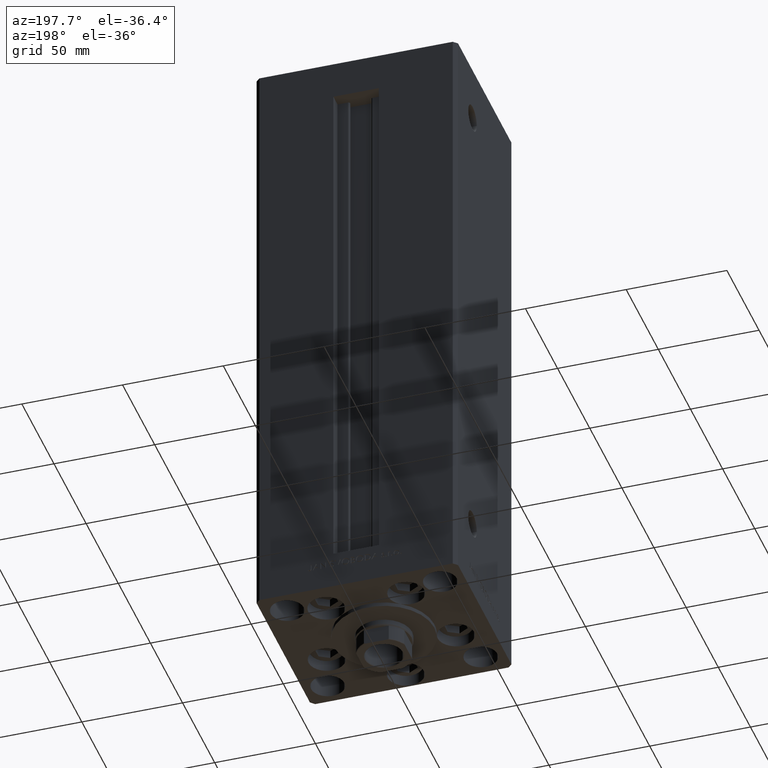
[diagram: clean part render]
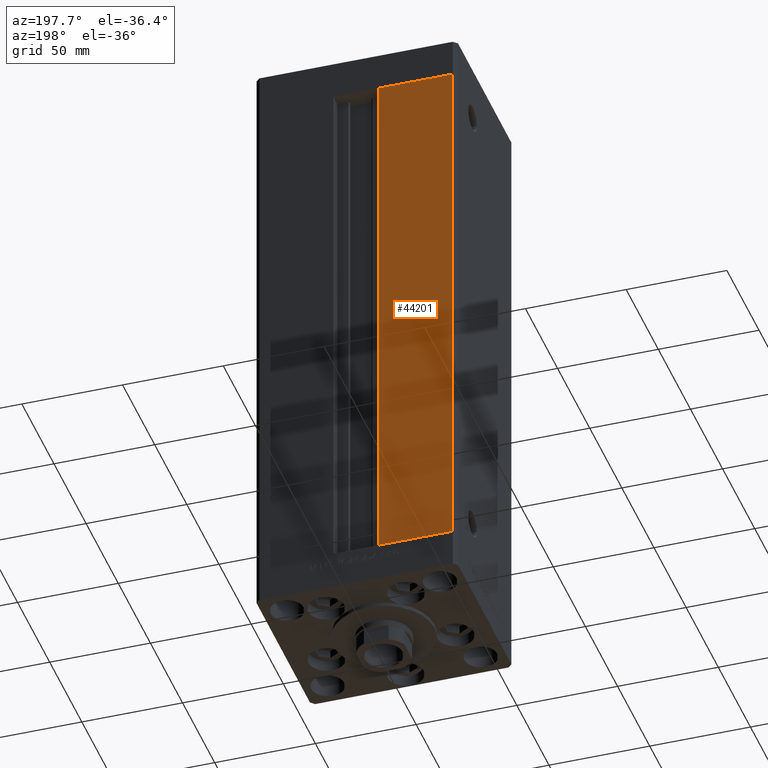
[diagram: same view with one face highlighted and labeled with its STEP entity id]
A machine part, auxiliary view. The second image highlights one B-rep face of the part: STEP entity #44201.
In plain terms, the highlighted planar face has unit normal (0, -1, 0).
Its self-contained STEP definition (entity closure, byte-faithful):
#866 = VECTOR ( 'NONE', #42245, 1000.000000000000000 ) ;
#1098 = CARTESIAN_POINT ( 'NONE',  ( -48.00000000000000711, 43.50000000000000000, 268.5000000000000000 ) ) ;
#1668 = VECTOR ( 'NONE', #35017, 1000.000000000000000 ) ;
#3226 = FACE_OUTER_BOUND ( 'NONE', #14101, .T. ) ;
#5992 = VERTEX_POINT ( 'NONE', #32886 ) ;
#6529 = VERTEX_POINT ( 'NONE', #26563 ) ;
#7055 = EDGE_CURVE ( 'NONE', #7555, #6529, #20066, .T. ) ;
#7555 = VERTEX_POINT ( 'NONE', #16772 ) ;
#7844 = EDGE_CURVE ( 'NONE', #31466, #5992, #12928, .T. ) ;
#9345 = ORIENTED_EDGE ( 'NONE', *, *, #11903, .F. ) ;
#10081 = VECTOR ( 'NONE', #35021, 1000.000000000000000 ) ;
#11335 = CARTESIAN_POINT ( 'NONE',  ( -11.24999999999999822, 43.50000000000000000, 0.000000000000000000 ) ) ;
#11903 = EDGE_CURVE ( 'NONE', #7555, #5992, #37696, .T. ) ;
#12529 = VECTOR ( 'NONE', #47636, 1000.000000000000000 ) ;
#12928 = LINE ( 'NONE', #43581, #12529 ) ;
#14101 = EDGE_LOOP ( 'NONE', ( #15762, #9345, #34101, #27576 ) ) ;
#14860 = DIRECTION ( 'NONE',  ( 0.000000000000000000, -1.000000000000000000, 0.000000000000000000 ) ) ;
#15762 = ORIENTED_EDGE ( 'NONE', *, *, #7844, .T. ) ;
#16772 = CARTESIAN_POINT ( 'NONE',  ( -11.24999999999999822, 43.50000000000000000, 0.000000000000000000 ) ) ;
#18655 = PLANE ( 'NONE',  #48634 ) ;
#20066 = LINE ( 'NONE', #46449, #10081 ) ;
#26563 = CARTESIAN_POINT ( 'NONE',  ( -48.00000000000000711, 43.50000000000000000, 0.000000000000000000 ) ) ;
#27576 = ORIENTED_EDGE ( 'NONE', *, *, #41488, .F. ) ;
#31466 = VERTEX_POINT ( 'NONE', #36083 ) ;
#32886 = CARTESIAN_POINT ( 'NONE',  ( -11.24999999999999822, 43.50000000000000000, 268.5000000000000000 ) ) ;
#34101 = ORIENTED_EDGE ( 'NONE', *, *, #7055, .T. ) ;
#35017 = DIRECTION ( 'NONE',  ( -0.000000000000000000, -0.000000000000000000, -1.000000000000000000 ) ) ;
#35021 = DIRECTION ( 'NONE',  ( -1.000000000000000000, 0.000000000000000000, 0.000000000000000000 ) ) ;
#35776 = LINE ( 'NONE', #1098, #1668 ) ;
#36083 = CARTESIAN_POINT ( 'NONE',  ( -48.00000000000000711, 43.50000000000000000, 268.5000000000000000 ) ) ;
#37696 = LINE ( 'NONE', #11335, #866 ) ;
#38166 = DIRECTION ( 'NONE',  ( 0.000000000000000000, -0.000000000000000000, -1.000000000000000000 ) ) ;
#41488 = EDGE_CURVE ( 'NONE', #31466, #6529, #35776, .T. ) ;
#42245 = DIRECTION ( 'NONE',  ( -0.000000000000000000, -0.000000000000000000, 1.000000000000000000 ) ) ;
#43581 = CARTESIAN_POINT ( 'NONE',  ( -11.24999999999999822, 43.50000000000000000, 268.5000000000000000 ) ) ;
#44201 = ADVANCED_FACE ( 'NONE', ( #3226 ), #18655, .F. ) ;
#46449 = CARTESIAN_POINT ( 'NONE',  ( -11.24999999999999822, 43.50000000000000000, 0.000000000000000000 ) ) ;
#47636 = DIRECTION ( 'NONE',  ( 1.000000000000000000, 0.000000000000000000, 0.000000000000000000 ) ) ;
#48634 = AXIS2_PLACEMENT_3D ( 'NONE', #49582, #14860, #38166 ) ;
#49582 = CARTESIAN_POINT ( 'NONE',  ( -11.24999999999999822, 43.50000000000000000, 268.5000000000000000 ) ) ;